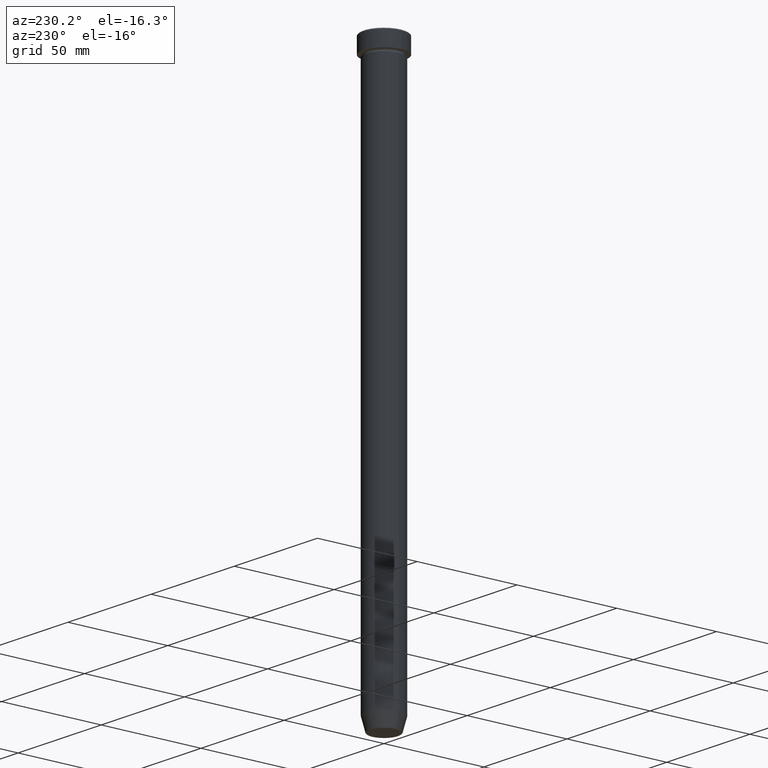
[diagram: clean part render]
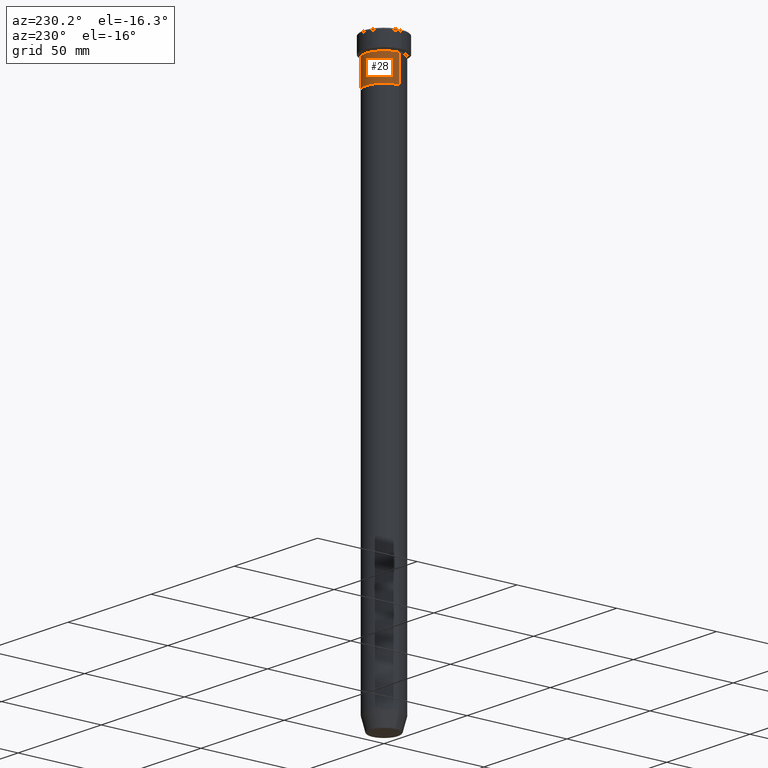
[diagram: same view with one face highlighted and labeled with its STEP entity id]
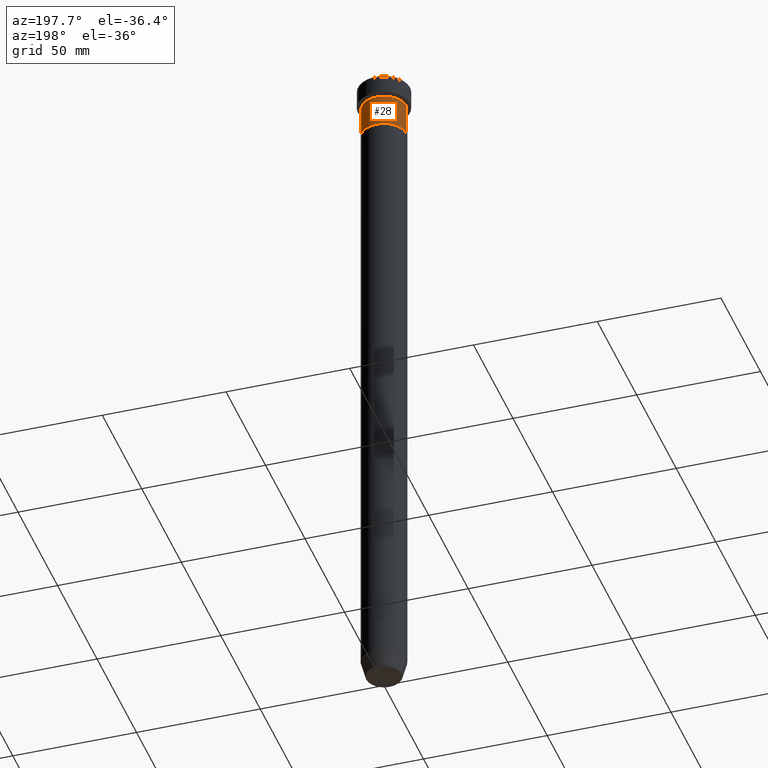
[diagram: same view with one face highlighted and labeled with its STEP entity id]
A machine part, auxiliary view. The second image highlights one B-rep face of the part: STEP entity #28.
A second angle (auxiliary view) of the same face is appended — the face is thin or edge-on in the first view.
In plain terms, the highlighted cylindrical surface (edge-blend (fillet) strip) has radius 9 mm, axis along (-0, -0, 1).
Its self-contained STEP definition (entity closure, byte-faithful):
#3 = DIRECTION ( 'NONE',  ( -0.000000000000000000, -0.000000000000000000, 1.000000000000000000 ) ) ;
#20 = CARTESIAN_POINT ( 'NONE',  ( 9.000000000000000000, 0.000000000000000000, -22.00000000000000000 ) ) ;
#28 = ADVANCED_FACE ( 'NONE', ( #175 ), #403, .T. ) ;
#46 = EDGE_CURVE ( 'NONE', #413, #279, #92, .T. ) ;
#59 = CARTESIAN_POINT ( 'NONE',  ( 9.000000000000000000, 0.000000000000000000, 0.000000000000000000 ) ) ;
#92 = CIRCLE ( 'NONE', #482, 9.000000000000000000 ) ;
#118 = VERTEX_POINT ( 'NONE', #20 ) ;
#120 = EDGE_CURVE ( 'NONE', #118, #413, #140, .T. ) ;
#122 = VERTEX_POINT ( 'NONE', #143 ) ;
#136 = ORIENTED_EDGE ( 'NONE', *, *, #359, .T. ) ;
#140 = LINE ( 'NONE', #59, #404 ) ;
#143 = CARTESIAN_POINT ( 'NONE',  ( -9.000000000000000000, 1.102182119232617714E-15, -22.00000000000000000 ) ) ;
#170 = DIRECTION ( 'NONE',  ( -0.000000000000000000, -0.000000000000000000, 1.000000000000000000 ) ) ;
#175 = FACE_OUTER_BOUND ( 'NONE', #479, .T. ) ;
#204 = AXIS2_PLACEMENT_3D ( 'NONE', #509, #170, #319 ) ;
#221 = DIRECTION ( 'NONE',  ( 1.000000000000000000, 0.000000000000000000, 0.000000000000000000 ) ) ;
#252 = DIRECTION ( 'NONE',  ( -0.000000000000000000, -0.000000000000000000, 1.000000000000000000 ) ) ;
#279 = VERTEX_POINT ( 'NONE', #296 ) ;
#296 = CARTESIAN_POINT ( 'NONE',  ( -9.000000000000000000, 1.102182119232617714E-15, -9.000000000000001776 ) ) ;
#319 = DIRECTION ( 'NONE',  ( 1.000000000000000000, 0.000000000000000000, 0.000000000000000000 ) ) ;
#344 = CIRCLE ( 'NONE', #427, 9.000000000000000000 ) ;
#355 = DIRECTION ( 'NONE',  ( -0.000000000000000000, -0.000000000000000000, 1.000000000000000000 ) ) ;
#359 = EDGE_CURVE ( 'NONE', #118, #122, #344, .T. ) ;
#375 = DIRECTION ( 'NONE',  ( -0.000000000000000000, -0.000000000000000000, 1.000000000000000000 ) ) ;
#399 = LINE ( 'NONE', #597, #510 ) ;
#403 = CYLINDRICAL_SURFACE ( 'NONE', #204, 9.000000000000000000 ) ;
#404 = VECTOR ( 'NONE', #375, 1000.000000000000000 ) ;
#413 = VERTEX_POINT ( 'NONE', #456 ) ;
#427 = AXIS2_PLACEMENT_3D ( 'NONE', #483, #252, #447 ) ;
#447 = DIRECTION ( 'NONE',  ( 1.000000000000000000, 0.000000000000000000, 0.000000000000000000 ) ) ;
#456 = CARTESIAN_POINT ( 'NONE',  ( 9.000000000000000000, 0.000000000000000000, -9.000000000000001776 ) ) ;
#464 = CARTESIAN_POINT ( 'NONE',  ( 0.000000000000000000, 0.000000000000000000, -9.000000000000001776 ) ) ;
#469 = ORIENTED_EDGE ( 'NONE', *, *, #46, .F. ) ;
#479 = EDGE_LOOP ( 'NONE', ( #136, #481, #469, #559 ) ) ;
#481 = ORIENTED_EDGE ( 'NONE', *, *, #504, .T. ) ;
#482 = AXIS2_PLACEMENT_3D ( 'NONE', #464, #3, #221 ) ;
#483 = CARTESIAN_POINT ( 'NONE',  ( 0.000000000000000000, 0.000000000000000000, -22.00000000000000000 ) ) ;
#504 = EDGE_CURVE ( 'NONE', #122, #279, #399, .T. ) ;
#509 = CARTESIAN_POINT ( 'NONE',  ( 0.000000000000000000, 0.000000000000000000, 0.000000000000000000 ) ) ;
#510 = VECTOR ( 'NONE', #355, 1000.000000000000000 ) ;
#559 = ORIENTED_EDGE ( 'NONE', *, *, #120, .F. ) ;
#597 = CARTESIAN_POINT ( 'NONE',  ( -9.000000000000000000, 1.102182119232617714E-15, 0.000000000000000000 ) ) ;